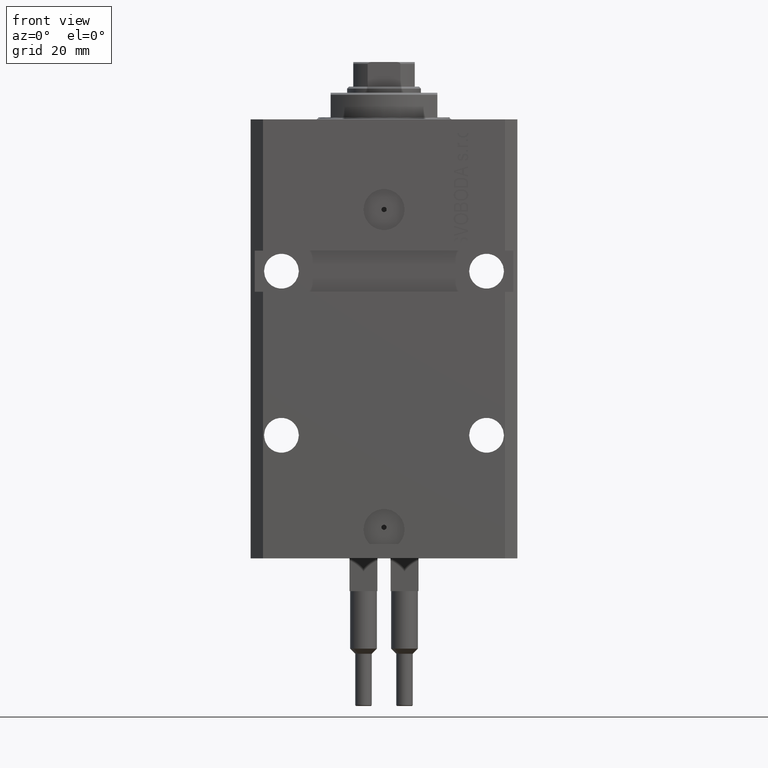
[diagram: clean part render]
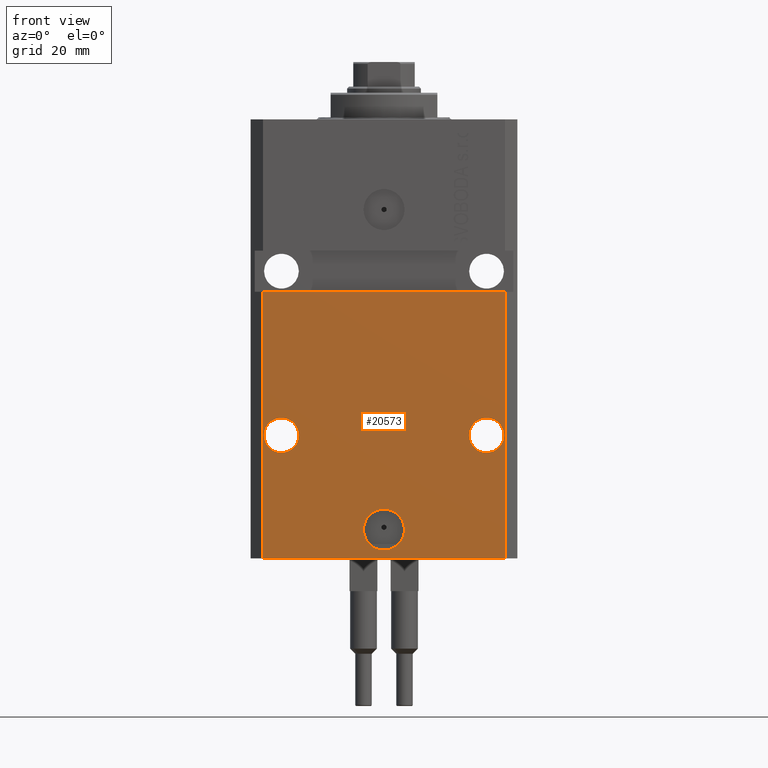
[diagram: same view with one face highlighted and labeled with its STEP entity id]
A machine part, front view. The second image highlights one B-rep face of the part: STEP entity #20573.
In plain terms, the highlighted planar face has unit normal (0, -1, 0).
Its self-contained STEP definition (entity closure, byte-faithful):
#205 = CIRCLE ( 'NONE', #28766, 5.000000000000006217 ) ;
#369 = DIRECTION ( 'NONE',  ( 1.000000000000000000, 0.000000000000000000, 0.000000000000000000 ) ) ;
#773 = DIRECTION ( 'NONE',  ( 1.176083712526788232E-16, -1.000000000000000000, 0.000000000000000000 ) ) ;
#821 = LINE ( 'NONE', #8276, #40583 ) ;
#940 = CARTESIAN_POINT ( 'NONE',  ( -29.49999999999650413, -22.49999999999949907, -107.0000000000000000 ) ) ;
#1756 = DIRECTION ( 'NONE',  ( 1.176083712526788232E-16, -1.000000000000000000, 0.000000000000000000 ) ) ;
#1867 = CARTESIAN_POINT ( 'NONE',  ( 29.49999999999650058, -22.49999999999949196, -41.99999999999998579 ) ) ;
#2320 = EDGE_CURVE ( 'NONE', #48008, #15782, #48229, .T. ) ;
#3229 = CIRCLE ( 'NONE', #43643, 4.249999999989057642 ) ;
#4002 = CIRCLE ( 'NONE', #42049, 4.249999999976592058 ) ;
#4611 = CARTESIAN_POINT ( 'NONE',  ( 29.49999999999650413, -22.49999999999949196, -107.0000000000000000 ) ) ;
#4739 = CARTESIAN_POINT ( 'NONE',  ( -25.00000000000000000, -22.49999999999949907, -76.99999999999998579 ) ) ;
#5319 = ORIENTED_EDGE ( 'NONE', *, *, #21618, .F. ) ;
#6216 = DIRECTION ( 'NONE',  ( 1.000000000000000000, 1.176083712526788232E-16, 0.000000000000000000 ) ) ;
#6305 = AXIS2_PLACEMENT_3D ( 'NONE', #38795, #45519, #369 ) ;
#6701 = CARTESIAN_POINT ( 'NONE',  ( 25.00000000000000711, -22.49999999999949196, -76.99999999999998579 ) ) ;
#6872 = ORIENTED_EDGE ( 'NONE', *, *, #2320, .F. ) ;
#6911 = CARTESIAN_POINT ( 'NONE',  ( -29.49999999999650413, -22.49999999999949907, -107.0000000000000000 ) ) ;
#6935 = VERTEX_POINT ( 'NONE', #1867 ) ;
#7078 = ORIENTED_EDGE ( 'NONE', *, *, #7418, .F. ) ;
#7400 = VERTEX_POINT ( 'NONE', #17936 ) ;
#7418 = EDGE_CURVE ( 'NONE', #15782, #48008, #4002, .T. ) ;
#7456 = DIRECTION ( 'NONE',  ( -1.000000000000000000, 0.000000000000000000, 0.000000000000000000 ) ) ;
#7549 = EDGE_LOOP ( 'NONE', ( #7078, #6872 ) ) ;
#8122 = VECTOR ( 'NONE', #36722, 1000.000000000000000 ) ;
#8276 = CARTESIAN_POINT ( 'NONE',  ( -32.49999999999650413, -22.49999999999949907, -41.99999999999999289 ) ) ;
#9944 = DIRECTION ( 'NONE',  ( 1.000000000000000000, 0.000000000000000000, 0.000000000000000000 ) ) ;
#10314 = CARTESIAN_POINT ( 'NONE',  ( 5.000000000000008882, -22.49999999999949551, -99.99999999999998579 ) ) ;
#10943 = CARTESIAN_POINT ( 'NONE',  ( -29.24999999997659472, -22.49999999999949907, -76.99999999999998579 ) ) ;
#11412 = DIRECTION ( 'NONE',  ( 1.000000000000000000, 0.000000000000000000, 0.000000000000000000 ) ) ;
#11632 = EDGE_CURVE ( 'NONE', #17422, #46143, #35255, .T. ) ;
#11996 = ORIENTED_EDGE ( 'NONE', *, *, #42922, .F. ) ;
#13704 = VECTOR ( 'NONE', #48406, 1000.000000000000000 ) ;
#13768 = VERTEX_POINT ( 'NONE', #4611 ) ;
#14368 = LINE ( 'NONE', #6911, #33519 ) ;
#15314 = ORIENTED_EDGE ( 'NONE', *, *, #24845, .F. ) ;
#15756 = AXIS2_PLACEMENT_3D ( 'NONE', #41684, #41440, #7456 ) ;
#15782 = VERTEX_POINT ( 'NONE', #43507 ) ;
#16391 = CARTESIAN_POINT ( 'NONE',  ( -29.49999999999650413, -22.49999999999949907, -107.0000000000000000 ) ) ;
#16899 = FACE_BOUND ( 'NONE', #7549, .T. ) ;
#17384 = FACE_BOUND ( 'NONE', #49095, .T. ) ;
#17422 = VERTEX_POINT ( 'NONE', #940 ) ;
#17936 = CARTESIAN_POINT ( 'NONE',  ( 20.75000000001094946, -22.49999999999949196, -76.99999999999998579 ) ) ;
#19682 = EDGE_LOOP ( 'NONE', ( #5319, #15314 ) ) ;
#20372 = CARTESIAN_POINT ( 'NONE',  ( 2.646188353185214061E-15, -22.49999999999949551, -99.99999999999998579 ) ) ;
#20573 = ADVANCED_FACE ( 'NONE', ( #17384, #24352, #16899, #43689 ), #36730, .T. ) ;
#20599 = VERTEX_POINT ( 'NONE', #39970 ) ;
#21618 = EDGE_CURVE ( 'NONE', #20599, #7400, #34013, .T. ) ;
#21879 = CARTESIAN_POINT ( 'NONE',  ( 29.49999999999650413, -22.49999999999949196, -107.0000000000000000 ) ) ;
#23732 = ORIENTED_EDGE ( 'NONE', *, *, #35532, .F. ) ;
#24352 = FACE_BOUND ( 'NONE', #19682, .T. ) ;
#24845 = EDGE_CURVE ( 'NONE', #7400, #20599, #3229, .T. ) ;
#25369 = LINE ( 'NONE', #21879, #13704 ) ;
#26974 = ORIENTED_EDGE ( 'NONE', *, *, #44275, .F. ) ;
#28063 = CIRCLE ( 'NONE', #42297, 5.000000000000006217 ) ;
#28766 = AXIS2_PLACEMENT_3D ( 'NONE', #20372, #1756, #9944 ) ;
#29361 = CARTESIAN_POINT ( 'NONE',  ( 2.646188353185214061E-15, -22.49999999999949551, -99.99999999999998579 ) ) ;
#29732 = EDGE_CURVE ( 'NONE', #17422, #13768, #14368, .T. ) ;
#31585 = EDGE_LOOP ( 'NONE', ( #11996, #32404, #48026, #42892 ) ) ;
#32404 = ORIENTED_EDGE ( 'NONE', *, *, #11632, .F. ) ;
#32627 = VERTEX_POINT ( 'NONE', #46725 ) ;
#32854 = DIRECTION ( 'NONE',  ( 1.000000000000000000, 0.000000000000000000, 0.000000000000000000 ) ) ;
#33519 = VECTOR ( 'NONE', #37173, 1000.000000000000000 ) ;
#33873 = CARTESIAN_POINT ( 'NONE',  ( -29.49999999999650413, -22.49999999999949907, -41.99999999999999289 ) ) ;
#34013 = CIRCLE ( 'NONE', #6305, 4.249999999989057642 ) ;
#35255 = LINE ( 'NONE', #16391, #8122 ) ;
#35532 = EDGE_CURVE ( 'NONE', #45995, #32627, #28063, .T. ) ;
#36007 = CARTESIAN_POINT ( 'NONE',  ( -29.49999999999650413, -22.49999999999949907, -107.0000000000000000 ) ) ;
#36722 = DIRECTION ( 'NONE',  ( 0.000000000000000000, 0.000000000000000000, 1.000000000000000000 ) ) ;
#36730 = PLANE ( 'NONE',  #37265 ) ;
#37173 = DIRECTION ( 'NONE',  ( 1.000000000000000000, 1.176083712526788232E-16, 0.000000000000000000 ) ) ;
#37265 = AXIS2_PLACEMENT_3D ( 'NONE', #36007, #39464, #6216 ) ;
#37999 = DIRECTION ( 'NONE',  ( -1.000000000000000000, 0.000000000000000000, 0.000000000000000000 ) ) ;
#38294 = DIRECTION ( 'NONE',  ( 1.000000000000000000, 1.067522139062765303E-16, 1.067522139062765303E-16 ) ) ;
#38795 = CARTESIAN_POINT ( 'NONE',  ( 25.00000000000000711, -22.49999999999949196, -76.99999999999998579 ) ) ;
#39464 = DIRECTION ( 'NONE',  ( 1.176083712526788232E-16, -1.000000000000000000, 0.000000000000000000 ) ) ;
#39970 = CARTESIAN_POINT ( 'NONE',  ( 29.24999999998906475, -22.49999999999949196, -76.99999999999998579 ) ) ;
#40526 = DIRECTION ( 'NONE',  ( 1.176083712526788232E-16, -1.000000000000000000, 0.000000000000000000 ) ) ;
#40583 = VECTOR ( 'NONE', #38294, 1000.000000000000000 ) ;
#41440 = DIRECTION ( 'NONE',  ( 1.176083712526788232E-16, -1.000000000000000000, 0.000000000000000000 ) ) ;
#41684 = CARTESIAN_POINT ( 'NONE',  ( -25.00000000000000000, -22.49999999999949907, -76.99999999999998579 ) ) ;
#42049 = AXIS2_PLACEMENT_3D ( 'NONE', #4739, #773, #37999 ) ;
#42297 = AXIS2_PLACEMENT_3D ( 'NONE', #29361, #40526, #32854 ) ;
#42892 = ORIENTED_EDGE ( 'NONE', *, *, #48874, .T. ) ;
#42922 = EDGE_CURVE ( 'NONE', #46143, #6935, #821, .T. ) ;
#43507 = CARTESIAN_POINT ( 'NONE',  ( -20.75000000002340883, -22.49999999999949907, -76.99999999999998579 ) ) ;
#43643 = AXIS2_PLACEMENT_3D ( 'NONE', #6701, #44658, #11412 ) ;
#43689 = FACE_OUTER_BOUND ( 'NONE', #31585, .T. ) ;
#44275 = EDGE_CURVE ( 'NONE', #32627, #45995, #205, .T. ) ;
#44658 = DIRECTION ( 'NONE',  ( 1.176083712526788232E-16, -1.000000000000000000, 0.000000000000000000 ) ) ;
#45519 = DIRECTION ( 'NONE',  ( 1.176083712526788232E-16, -1.000000000000000000, 0.000000000000000000 ) ) ;
#45995 = VERTEX_POINT ( 'NONE', #10314 ) ;
#46143 = VERTEX_POINT ( 'NONE', #33873 ) ;
#46725 = CARTESIAN_POINT ( 'NONE',  ( -5.000000000000003553, -22.49999999999949551, -99.99999999999998579 ) ) ;
#48008 = VERTEX_POINT ( 'NONE', #10943 ) ;
#48026 = ORIENTED_EDGE ( 'NONE', *, *, #29732, .T. ) ;
#48229 = CIRCLE ( 'NONE', #15756, 4.249999999976592058 ) ;
#48406 = DIRECTION ( 'NONE',  ( 0.000000000000000000, 0.000000000000000000, 1.000000000000000000 ) ) ;
#48874 = EDGE_CURVE ( 'NONE', #13768, #6935, #25369, .T. ) ;
#49095 = EDGE_LOOP ( 'NONE', ( #23732, #26974 ) ) ;